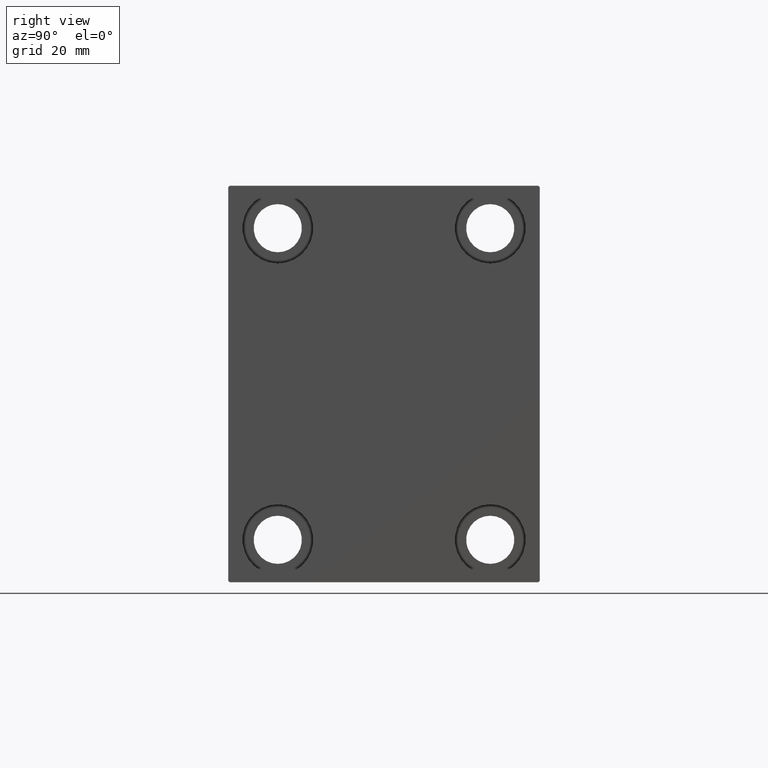
[diagram: clean part render]
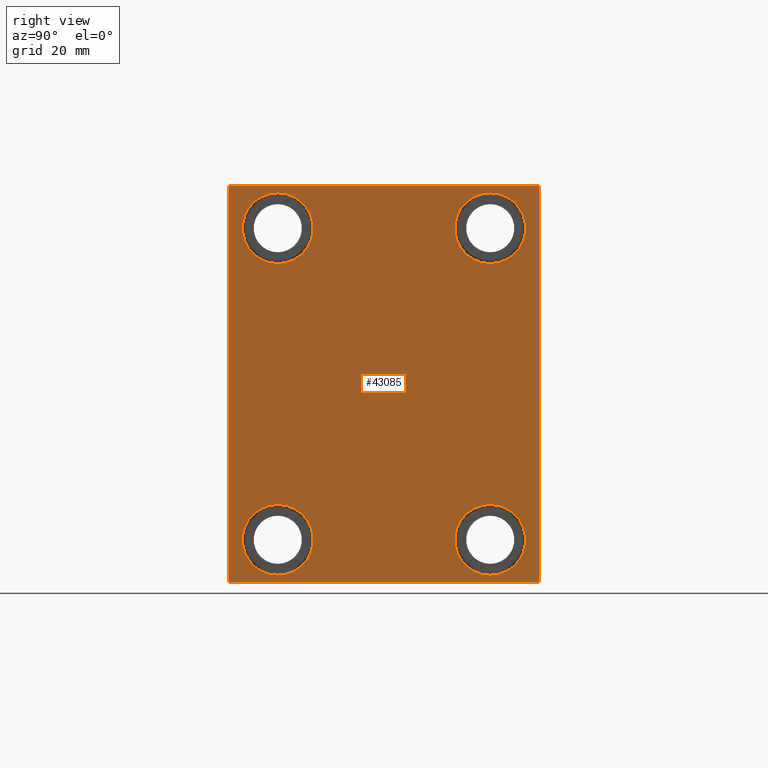
[diagram: same view with one face highlighted and labeled with its STEP entity id]
A machine part, right view. The second image highlights one B-rep face of the part: STEP entity #43085.
In plain terms, the highlighted planar face has unit normal (1, 0, 0).
Its self-contained STEP definition (entity closure, byte-faithful):
#478 = VECTOR ( 'NONE', #2442, 1000.000000000000000 ) ;
#636 = DIRECTION ( 'NONE',  ( -0.000000000000000000, 0.7071067811865574537, -0.7071067811865376918 ) ) ;
#1256 = LINE ( 'NONE', #25305, #14648 ) ;
#1287 = CARTESIAN_POINT ( 'NONE',  ( 173.0000000000000000, 37.50000000000000711, 42.50000000000000711 ) ) ;
#1464 = VERTEX_POINT ( 'NONE', #19893 ) ;
#1587 = AXIS2_PLACEMENT_3D ( 'NONE', #38764, #25651, #39206 ) ;
#2442 = DIRECTION ( 'NONE',  ( 0.000000000000000000, -1.000000000000000000, -1.261617073437677999E-16 ) ) ;
#2804 = EDGE_CURVE ( 'NONE', #1464, #20419, #19786, .T. ) ;
#3016 = DIRECTION ( 'NONE',  ( -1.000000000000000000, -0.000000000000000000, -0.000000000000000000 ) ) ;
#3235 = DIRECTION ( 'NONE',  ( -1.000000000000000000, -0.000000000000000000, -0.000000000000000000 ) ) ;
#4290 = ORIENTED_EDGE ( 'NONE', *, *, #13941, .T. ) ;
#4386 = LINE ( 'NONE', #14645, #34916 ) ;
#4861 = DIRECTION ( 'NONE',  ( 0.000000000000000000, 1.000000000000000000, 2.523234146875355012E-16 ) ) ;
#4922 = FACE_BOUND ( 'NONE', #22823, .T. ) ;
#5005 = AXIS2_PLACEMENT_3D ( 'NONE', #43729, #3235, #33731 ) ;
#5018 = EDGE_CURVE ( 'NONE', #11742, #15106, #32522, .T. ) ;
#6075 = CARTESIAN_POINT ( 'NONE',  ( 173.0000000000000000, -37.50000000000002132, -42.49999999999999289 ) ) ;
#6090 = VERTEX_POINT ( 'NONE', #40137 ) ;
#6567 = VECTOR ( 'NONE', #35545, 1000.000000000000000 ) ;
#6725 = ORIENTED_EDGE ( 'NONE', *, *, #19360, .T. ) ;
#7591 = DIRECTION ( 'NONE',  ( 0.000000000000000000, 0.000000000000000000, 1.000000000000000000 ) ) ;
#8045 = ORIENTED_EDGE ( 'NONE', *, *, #31509, .T. ) ;
#8871 = ORIENTED_EDGE ( 'NONE', *, *, #11519, .T. ) ;
#9135 = CARTESIAN_POINT ( 'NONE',  ( 173.0000000000000000, 37.49999999999997868, -54.99999999999999289 ) ) ;
#9956 = ORIENTED_EDGE ( 'NONE', *, *, #36129, .T. ) ;
#10195 = VERTEX_POINT ( 'NONE', #34404 ) ;
#10376 = DIRECTION ( 'NONE',  ( 0.000000000000000000, 0.000000000000000000, 1.000000000000000000 ) ) ;
#10760 = ORIENTED_EDGE ( 'NONE', *, *, #28553, .T. ) ;
#10799 = ORIENTED_EDGE ( 'NONE', *, *, #27075, .T. ) ;
#10857 = CIRCLE ( 'NONE', #1587, 12.49999999999999645 ) ;
#11394 = FACE_BOUND ( 'NONE', #41733, .T. ) ;
#11519 = EDGE_CURVE ( 'NONE', #15106, #11742, #39060, .T. ) ;
#11742 = VERTEX_POINT ( 'NONE', #1287 ) ;
#13109 = DIRECTION ( 'NONE',  ( 0.000000000000000000, 0.000000000000000000, 1.000000000000000000 ) ) ;
#13134 = LINE ( 'NONE', #33377, #478 ) ;
#13403 = CARTESIAN_POINT ( 'NONE',  ( 173.0000000000000000, 62.25000000000000000, -62.25000000000000000 ) ) ;
#13941 = EDGE_CURVE ( 'NONE', #20837, #28417, #36256, .T. ) ;
#14115 = ORIENTED_EDGE ( 'NONE', *, *, #39189, .T. ) ;
#14227 = LINE ( 'NONE', #20438, #6567 ) ;
#14645 = CARTESIAN_POINT ( 'NONE',  ( 173.0000000000000000, 62.24999999999997868, 62.24999999999997868 ) ) ;
#14648 = VECTOR ( 'NONE', #42199, 1000.000000000000114 ) ;
#14738 = FACE_BOUND ( 'NONE', #40701, .T. ) ;
#15035 = AXIS2_PLACEMENT_3D ( 'NONE', #33142, #30238, #13109 ) ;
#15106 = VERTEX_POINT ( 'NONE', #21622 ) ;
#15372 = CARTESIAN_POINT ( 'NONE',  ( 173.0000000000000000, -37.50000000000002132, -54.99999999999999289 ) ) ;
#15898 = VECTOR ( 'NONE', #17413, 1000.000000000000114 ) ;
#15948 = ORIENTED_EDGE ( 'NONE', *, *, #24669, .T. ) ;
#16472 = DIRECTION ( 'NONE',  ( 0.000000000000000000, 0.000000000000000000, 1.000000000000000000 ) ) ;
#16635 = VECTOR ( 'NONE', #4861, 1000.000000000000000 ) ;
#17039 = VERTEX_POINT ( 'NONE', #25153 ) ;
#17358 = LINE ( 'NONE', #37806, #33684 ) ;
#17361 = CARTESIAN_POINT ( 'NONE',  ( 173.0000000000000000, -55.00000000000000711, -69.50000000000001421 ) ) ;
#17413 = DIRECTION ( 'NONE',  ( -0.000000000000000000, 0.7071067811865474617, 0.7071067811865474617 ) ) ;
#17728 = ORIENTED_EDGE ( 'NONE', *, *, #30812, .T. ) ;
#18091 = CARTESIAN_POINT ( 'NONE',  ( 173.0000000000000000, -37.50000000000000711, 55.00000000000000711 ) ) ;
#18101 = ORIENTED_EDGE ( 'NONE', *, *, #5018, .T. ) ;
#18287 = PLANE ( 'NONE',  #21812 ) ;
#18320 = CARTESIAN_POINT ( 'NONE',  ( 173.0000000000000000, 54.49999999999999289, -70.00000000000000000 ) ) ;
#18447 = CARTESIAN_POINT ( 'NONE',  ( 173.0000000000000000, -37.50000000000000711, 42.50000000000000711 ) ) ;
#18505 = VERTEX_POINT ( 'NONE', #34167 ) ;
#19360 = EDGE_CURVE ( 'NONE', #20419, #1464, #19372, .T. ) ;
#19372 = CIRCLE ( 'NONE', #15035, 12.49999999999999645 ) ;
#19720 = AXIS2_PLACEMENT_3D ( 'NONE', #24173, #3016, #10376 ) ;
#19786 = CIRCLE ( 'NONE', #38233, 12.49999999999999645 ) ;
#19893 = CARTESIAN_POINT ( 'NONE',  ( 173.0000000000000000, 37.49999999999997868, -67.49999999999998579 ) ) ;
#20419 = VERTEX_POINT ( 'NONE', #22388 ) ;
#20438 = CARTESIAN_POINT ( 'NONE',  ( 173.0000000000000000, -55.00000000000000711, 69.99999999999998579 ) ) ;
#20627 = VERTEX_POINT ( 'NONE', #25030 ) ;
#20837 = VERTEX_POINT ( 'NONE', #6075 ) ;
#21622 = CARTESIAN_POINT ( 'NONE',  ( 173.0000000000000000, 37.50000000000000711, 67.50000000000000000 ) ) ;
#21711 = EDGE_CURVE ( 'NONE', #10195, #23007, #4386, .T. ) ;
#21812 = AXIS2_PLACEMENT_3D ( 'NONE', #38517, #42067, #25179 ) ;
#22262 = EDGE_CURVE ( 'NONE', #28417, #20837, #34947, .T. ) ;
#22274 = FACE_BOUND ( 'NONE', #30418, .T. ) ;
#22388 = CARTESIAN_POINT ( 'NONE',  ( 173.0000000000000000, 37.49999999999997868, -42.49999999999999289 ) ) ;
#22823 = EDGE_LOOP ( 'NONE', ( #26655, #6725 ) ) ;
#23007 = VERTEX_POINT ( 'NONE', #40787 ) ;
#23934 = VERTEX_POINT ( 'NONE', #18320 ) ;
#24076 = EDGE_CURVE ( 'NONE', #6090, #42454, #10857, .T. ) ;
#24173 = CARTESIAN_POINT ( 'NONE',  ( 173.0000000000000000, 37.50000000000000711, 55.00000000000000711 ) ) ;
#24669 = EDGE_CURVE ( 'NONE', #20627, #42294, #14227, .T. ) ;
#24720 = VECTOR ( 'NONE', #31392, 1000.000000000000000 ) ;
#24734 = DIRECTION ( 'NONE',  ( -1.000000000000000000, -0.000000000000000000, -0.000000000000000000 ) ) ;
#24955 = FACE_OUTER_BOUND ( 'NONE', #37576, .T. ) ;
#25030 = CARTESIAN_POINT ( 'NONE',  ( 173.0000000000000000, -55.00000000000000711, 69.49999999999998579 ) ) ;
#25153 = CARTESIAN_POINT ( 'NONE',  ( 173.0000000000000000, 55.00000000000002132, -69.49999999999997158 ) ) ;
#25179 = DIRECTION ( 'NONE',  ( 0.000000000000000000, 0.000000000000000000, -1.000000000000000000 ) ) ;
#25305 = CARTESIAN_POINT ( 'NONE',  ( 173.0000000000000000, -62.25000000000000000, 62.25000000000000000 ) ) ;
#25651 = DIRECTION ( 'NONE',  ( -1.000000000000000000, -0.000000000000000000, -0.000000000000000000 ) ) ;
#26655 = ORIENTED_EDGE ( 'NONE', *, *, #2804, .T. ) ;
#26794 = AXIS2_PLACEMENT_3D ( 'NONE', #18091, #41443, #42089 ) ;
#27075 = EDGE_CURVE ( 'NONE', #17039, #10195, #34941, .T. ) ;
#27413 = CARTESIAN_POINT ( 'NONE',  ( 173.0000000000000000, -54.49999999999997868, -70.00000000000002842 ) ) ;
#27853 = AXIS2_PLACEMENT_3D ( 'NONE', #15372, #39806, #36021 ) ;
#28060 = CARTESIAN_POINT ( 'NONE',  ( 173.0000000000000000, 55.00000000000002132, -70.00000000000000000 ) ) ;
#28226 = CIRCLE ( 'NONE', #26794, 12.49999999999999645 ) ;
#28417 = VERTEX_POINT ( 'NONE', #38784 ) ;
#28553 = EDGE_CURVE ( 'NONE', #23934, #17039, #40521, .T. ) ;
#29633 = VERTEX_POINT ( 'NONE', #27413 ) ;
#30238 = DIRECTION ( 'NONE',  ( -1.000000000000000000, -0.000000000000000000, -0.000000000000000000 ) ) ;
#30334 = ORIENTED_EDGE ( 'NONE', *, *, #22262, .T. ) ;
#30418 = EDGE_LOOP ( 'NONE', ( #18101, #8871 ) ) ;
#30812 = EDGE_CURVE ( 'NONE', #29633, #23934, #38241, .T. ) ;
#31392 = DIRECTION ( 'NONE',  ( 0.000000000000000000, -1.982541115402065110E-16, 1.000000000000000000 ) ) ;
#31509 = EDGE_CURVE ( 'NONE', #42294, #29633, #17358, .T. ) ;
#31760 = DIRECTION ( 'NONE',  ( -0.000000000000000000, -0.7071067811865474617, 0.7071067811865474617 ) ) ;
#32522 = CIRCLE ( 'NONE', #19720, 12.49999999999999645 ) ;
#33142 = CARTESIAN_POINT ( 'NONE',  ( 173.0000000000000000, 37.49999999999997868, -54.99999999999999289 ) ) ;
#33377 = CARTESIAN_POINT ( 'NONE',  ( 173.0000000000000000, 54.99999999999999289, 70.00000000000000000 ) ) ;
#33684 = VECTOR ( 'NONE', #636, 999.9999999999998863 ) ;
#33731 = DIRECTION ( 'NONE',  ( 0.000000000000000000, 0.000000000000000000, 1.000000000000000000 ) ) ;
#34167 = CARTESIAN_POINT ( 'NONE',  ( 173.0000000000000000, -54.50000000000000711, 69.99999999999998579 ) ) ;
#34404 = CARTESIAN_POINT ( 'NONE',  ( 173.0000000000000000, 54.99999999999999289, 69.49999999999997158 ) ) ;
#34912 = ORIENTED_EDGE ( 'NONE', *, *, #21711, .T. ) ;
#34916 = VECTOR ( 'NONE', #31760, 1000.000000000000114 ) ;
#34941 = LINE ( 'NONE', #28060, #24720 ) ;
#34947 = CIRCLE ( 'NONE', #27853, 12.49999999999999645 ) ;
#35545 = DIRECTION ( 'NONE',  ( 0.000000000000000000, 0.000000000000000000, -1.000000000000000000 ) ) ;
#36021 = DIRECTION ( 'NONE',  ( 0.000000000000000000, 0.000000000000000000, 1.000000000000000000 ) ) ;
#36129 = EDGE_CURVE ( 'NONE', #18505, #20627, #1256, .T. ) ;
#36256 = CIRCLE ( 'NONE', #5005, 12.49999999999999645 ) ;
#36879 = AXIS2_PLACEMENT_3D ( 'NONE', #38078, #24734, #7591 ) ;
#37136 = DIRECTION ( 'NONE',  ( -1.000000000000000000, -0.000000000000000000, -0.000000000000000000 ) ) ;
#37576 = EDGE_LOOP ( 'NONE', ( #38752, #9956, #15948, #8045, #17728, #10760, #10799, #34912 ) ) ;
#37806 = CARTESIAN_POINT ( 'NONE',  ( 173.0000000000000000, -62.24999999999924682, -62.25000000000098055 ) ) ;
#38078 = CARTESIAN_POINT ( 'NONE',  ( 173.0000000000000000, 37.50000000000000711, 55.00000000000000711 ) ) ;
#38233 = AXIS2_PLACEMENT_3D ( 'NONE', #9135, #37136, #16472 ) ;
#38241 = LINE ( 'NONE', #41361, #16635 ) ;
#38517 = CARTESIAN_POINT ( 'NONE',  ( 173.0000000000000000, 0.000000000000000000, 0.000000000000000000 ) ) ;
#38752 = ORIENTED_EDGE ( 'NONE', *, *, #43141, .T. ) ;
#38764 = CARTESIAN_POINT ( 'NONE',  ( 173.0000000000000000, -37.50000000000000711, 55.00000000000000711 ) ) ;
#38784 = CARTESIAN_POINT ( 'NONE',  ( 173.0000000000000000, -37.50000000000002132, -67.49999999999998579 ) ) ;
#39060 = CIRCLE ( 'NONE', #36879, 12.49999999999999645 ) ;
#39189 = EDGE_CURVE ( 'NONE', #42454, #6090, #28226, .T. ) ;
#39206 = DIRECTION ( 'NONE',  ( 0.000000000000000000, 0.000000000000000000, 1.000000000000000000 ) ) ;
#39806 = DIRECTION ( 'NONE',  ( -1.000000000000000000, -0.000000000000000000, -0.000000000000000000 ) ) ;
#40137 = CARTESIAN_POINT ( 'NONE',  ( 173.0000000000000000, -37.50000000000000711, 67.50000000000000000 ) ) ;
#40521 = LINE ( 'NONE', #13403, #15898 ) ;
#40701 = EDGE_LOOP ( 'NONE', ( #14115, #43457 ) ) ;
#40787 = CARTESIAN_POINT ( 'NONE',  ( 173.0000000000000000, 54.49999999999996447, 70.00000000000000000 ) ) ;
#41361 = CARTESIAN_POINT ( 'NONE',  ( 173.0000000000000000, -55.00000000000000711, -70.00000000000002842 ) ) ;
#41443 = DIRECTION ( 'NONE',  ( -1.000000000000000000, -0.000000000000000000, -0.000000000000000000 ) ) ;
#41733 = EDGE_LOOP ( 'NONE', ( #30334, #4290 ) ) ;
#42067 = DIRECTION ( 'NONE',  ( 1.000000000000000000, 0.000000000000000000, 0.000000000000000000 ) ) ;
#42089 = DIRECTION ( 'NONE',  ( 0.000000000000000000, 0.000000000000000000, 1.000000000000000000 ) ) ;
#42199 = DIRECTION ( 'NONE',  ( 0.000000000000000000, -0.7071067811865474617, -0.7071067811865474617 ) ) ;
#42294 = VERTEX_POINT ( 'NONE', #17361 ) ;
#42454 = VERTEX_POINT ( 'NONE', #18447 ) ;
#43085 = ADVANCED_FACE ( 'NONE', ( #4922, #14738, #22274, #11394, #24955 ), #18287, .T. ) ;
#43141 = EDGE_CURVE ( 'NONE', #23007, #18505, #13134, .T. ) ;
#43457 = ORIENTED_EDGE ( 'NONE', *, *, #24076, .T. ) ;
#43729 = CARTESIAN_POINT ( 'NONE',  ( 173.0000000000000000, -37.50000000000002132, -54.99999999999999289 ) ) ;